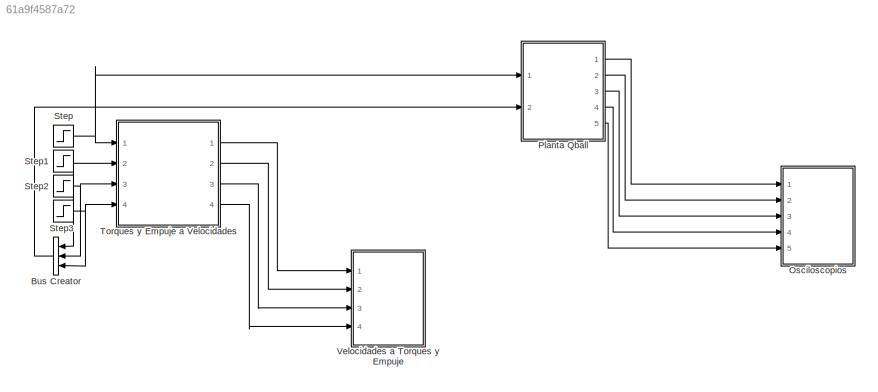
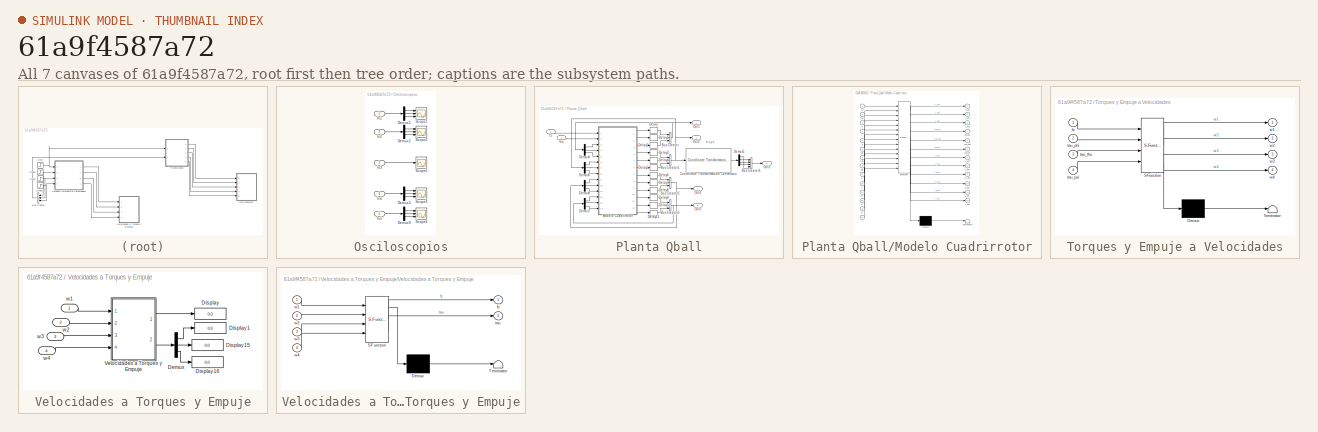
[diagram: thumbnail index - all 7 canvases of the model, root first then tree order]
MODEL slx_61a9f4587a72
KIND model
CONFIG AbsTol = auto
CONFIG EnableMultiTasking = off
CONFIG FixedStep = T
CONFIG MaxStep = auto
CONFIG MinStep = auto
CONFIG RelTol = 1e-3
CONFIG SampleTimeConstraint = Unconstrained
CONFIG SolverName = FixedStepAuto
CONFIG StartTime = 0.0
CONFIG StopTime = 20
BLOCK [BusCreator] Bus Creator
  DisplayOption = bar
  InheritFromInputs = on
  Inputs = 3
  Ports = [3, 1]
BLOCK [SubSystem] Osciloscopios
  Ports = [5]
  RequestExecContextInheritance = off
BLOCK [Demux] Osciloscopios/Demux1
  Outputs = 3
  Ports = [1, 3]
BLOCK [Demux] Osciloscopios/Demux2
  Outputs = 3
  Ports = [1, 3]
BLOCK [Demux] Osciloscopios/Demux3
  Outputs = 3
  Ports = [1, 3]
BLOCK [Demux] Osciloscopios/Demux9
  Outputs = 3
  Ports = [1, 3]
BLOCK [Inport] Osciloscopios/In1
BLOCK [Inport] Osciloscopios/In2
  Port = 2
BLOCK [Inport] Osciloscopios/In3
  Port = 3
BLOCK [Inport] Osciloscopios/In4
  Port = 4
BLOCK [Inport] Osciloscopios/In5
  Port = 5
BLOCK [Scope] Osciloscopios/Scope1
  Floating = off
  NumInputPorts = 3
  Ports = [3]
  ScopeSpecificationString = Simulink.scopes.TimeScopeBlockCfg('CurrentConfiguration', extmgr.ConfigurationSet(extmgr.Configuration('Core','General UI',true),extmgr.Configuration('Core','Source UI',true),extmgr.Configuration('Sources','WiredSimulink',true,'DataLoggingVariableName','ScopeData1'),extmgr.Configuration('Visuals','Time Domain',true,'SerializedDisplays',{struct('MinYLimReal','-0.00166','MaxYLimReal','0.00018','YLab...<+2093ch>
BLOCK [Scope] Osciloscopios/Scope2
  Floating = off
  NumInputPorts = 3
  Ports = [3]
  ScopeSpecificationString = Simulink.scopes.TimeScopeBlockCfg('CurrentConfiguration', extmgr.ConfigurationSet(extmgr.Configuration('Core','General UI',true),extmgr.Configuration('Core','Source UI',true),extmgr.Configuration('Sources','WiredSimulink',true,'DataLoggingVariableName','ScopeData2'),extmgr.Configuration('Visuals','Time Domain',true,'SerializedDisplays',{struct('MinYLimReal','-1.00000','MaxYLimReal','1.00000','YLab...<+2100ch>
BLOCK [Scope] Osciloscopios/Scope3
  Floating = off
  NumInputPorts = 3
  Ports = [3]
  ScopeSpecificationString = Simulink.scopes.TimeScopeBlockCfg('CurrentConfiguration', extmgr.ConfigurationSet(extmgr.Configuration('Core','General UI',true),extmgr.Configuration('Core','Source UI',true),extmgr.Configuration('Sources','WiredSimulink',true,'DataLoggingVariableName','ScopeData3'),extmgr.Configuration('Visuals','Time Domain',true,'SerializedDisplays',{struct('MinYLimReal','-0.83487','MaxYLimReal','7.51387','YLab...<+2088ch>
BLOCK [Scope] Osciloscopios/Scope4
  Floating = off
  NumInputPorts = 3
  Ports = [3]
  ScopeSpecificationString = Simulink.scopes.TimeScopeBlockCfg('CurrentConfiguration', extmgr.ConfigurationSet(extmgr.Configuration('Core','General UI',true),extmgr.Configuration('Core','Source UI',true),extmgr.Configuration('Sources','WiredSimulink',true,'DataLoggingVariableName','ScopeData4'),extmgr.Configuration('Visuals','Time Domain',true,'SerializedDisplays',{struct('MinYLimReal','-0.20417','MaxYLimReal','1.8375','YLabe...<+2084ch>
BLOCK [Scope] Osciloscopios/Scope5
  Floating = off
  NumInputPorts = 1
  Ports = [1]
  ScopeSpecificationString = Simulink.scopes.TimeScopeBlockCfg('CurrentConfiguration', extmgr.ConfigurationSet(extmgr.Configuration('Core','General UI',true),extmgr.Configuration('Core','Source UI',true),extmgr.Configuration('Sources','WiredSimulink',true),extmgr.Configuration('Visuals','Time Domain',true,'SerializedDisplays',{struct('MinYLimReal','-0.125','MaxYLimReal','1.125','YLabelReal','','MinYLimMag','0.00000','MaxYLimM...<+2045ch>
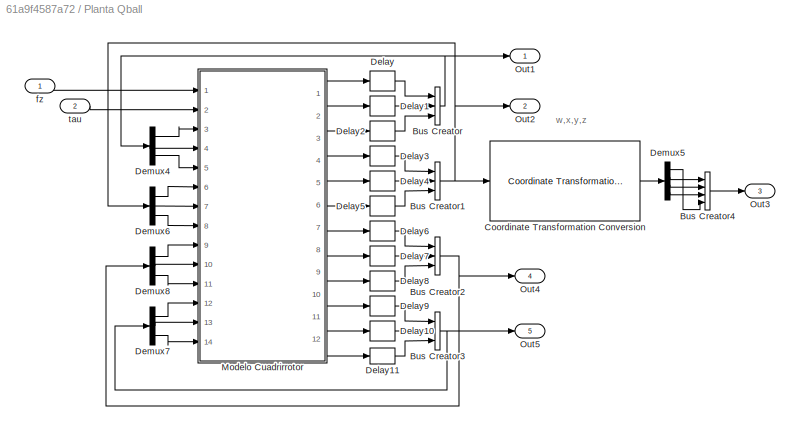
BLOCK [SubSystem] Planta Qball
  Ports = [2, 5]
  RequestExecContextInheritance = off
BLOCK [BusCreator] Planta Qball/Bus Creator
  DisplayOption = bar
  InheritFromInputs = on
  Inputs = 3
  Ports = [3, 1]
BLOCK [BusCreator] Planta Qball/Bus Creator1
  DisplayOption = bar
  InheritFromInputs = on
  Inputs = 3
  Ports = [3, 1]
BLOCK [BusCreator] Planta Qball/Bus Creator2
  DisplayOption = bar
  InheritFromInputs = on
  Inputs = 3
  Ports = [3, 1]
BLOCK [BusCreator] Planta Qball/Bus Creator3
  DisplayOption = bar
  InheritFromInputs = on
  Inputs = 3
  Ports = [3, 1]
BLOCK [BusCreator] Planta Qball/Bus Creator4
  DisplayOption = bar
  InheritFromInputs = on
  Inputs = 4
  Ports = [4, 1]
BLOCK [Reference] Planta Qball/Coordinate Transformation Conversion  REF=robotcorelib/Coordinate Transformation Conversion
  Ports = [1, 1]
  SourceBlock = robotcorelib/Coordinate Transformation Conversion
  SourceProductBaseCode = NV,RO,RR,UV
  SourceType = robotics.slcore.internal.block.CoordinateTransformationConversion
BLOCK [Delay] Planta Qball/Delay
  DelayLength = 1
  InputPortMap = u0
  Ports = [1, 1]
  SampleTime = T
BLOCK [Delay] Planta Qball/Delay1
  DelayLength = 1
  InputPortMap = u0
  Ports = [1, 1]
  SampleTime = T
BLOCK [Delay] Planta Qball/Delay10
  DelayLength = 1
  InputPortMap = u0
  Ports = [1, 1]
  SampleTime = T
BLOCK [Delay] Planta Qball/Delay11
  DelayLength = 1
  InputPortMap = u0
  Ports = [1, 1]
  SampleTime = T
BLOCK [Delay] Planta Qball/Delay2
  DelayLength = 1
  InputPortMap = u0
  Ports = [1, 1]
  SampleTime = T
BLOCK [Delay] Planta Qball/Delay3
  DelayLength = 1
  InputPortMap = u0
  Ports = [1, 1]
  SampleTime = T
BLOCK [Delay] Planta Qball/Delay4
  DelayLength = 1
  InputPortMap = u0
  Ports = [1, 1]
  SampleTime = T
BLOCK [Delay] Planta Qball/Delay5
  DelayLength = 1
  InputPortMap = u0
  Ports = [1, 1]
  SampleTime = T
BLOCK [Delay] Planta Qball/Delay6
  DelayLength = 1
  InputPortMap = u0
  Ports = [1, 1]
  SampleTime = T
BLOCK [Delay] Planta Qball/Delay7
  DelayLength = 1
  InputPortMap = u0
  Ports = [1, 1]
  SampleTime = T
BLOCK [Delay] Planta Qball/Delay8
  DelayLength = 1
  InputPortMap = u0
  Ports = [1, 1]
  SampleTime = T
BLOCK [Delay] Planta Qball/Delay9
  DelayLength = 1
  InputPortMap = u0
  Ports = [1, 1]
  SampleTime = T
BLOCK [Demux] Planta Qball/Demux4
  Outputs = 3
  Ports = [1, 3]
BLOCK [Demux] Planta Qball/Demux5
  Ports = [1, 4]
BLOCK [Demux] Planta Qball/Demux6
  Outputs = 3
  Ports = [1, 3]
BLOCK [Demux] Planta Qball/Demux7
  Outputs = 3
  Ports = [1, 3]
BLOCK [Demux] Planta Qball/Demux8
  Outputs = 3
  Ports = [1, 3]
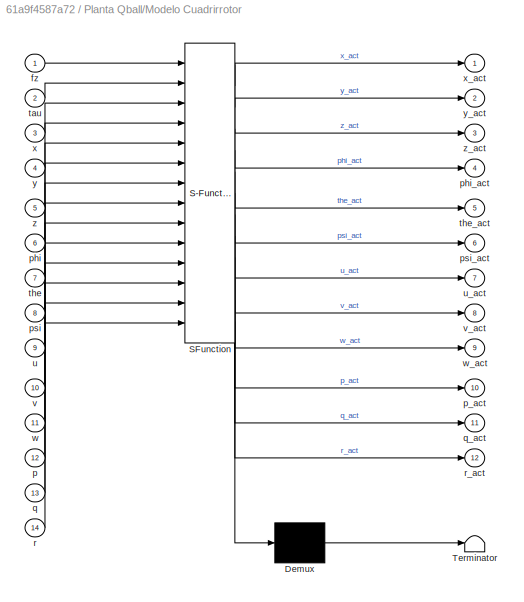
BLOCK [SubSystem] Planta Qball/Modelo Cuadrirrotor
  ErrorFcn = Stateflow.Translate.translate
  PermitHierarchicalResolution = ExplicitOnly
  Ports = [14, 12]
  RequestExecContextInheritance = off
  SFBlockType = MATLAB Function
  TreatAsAtomicUnit = on
BLOCK [Demux] Planta Qball/Modelo Cuadrirrotor/ Demux 
  Outputs = 1
  Ports = [1, 1]
BLOCK [S-Function] Planta Qball/Modelo Cuadrirrotor/ SFunction 
  EnableBusSupport = on
  FunctionName = sf_sfun
  PortCounts = [14 13]
  Ports = [14, 13]
  SFcnIsStateOwnerBlock = off
  SFunctionDeploymentMode = off
  Tag = Stateflow S-Function 3
BLOCK [Terminator] Planta Qball/Modelo Cuadrirrotor/ Terminator 
BLOCK [Inport] Planta Qball/Modelo Cuadrirrotor/fz
BLOCK [Inport] Planta Qball/Modelo Cuadrirrotor/p
  Port = 12
BLOCK [Outport] Planta Qball/Modelo Cuadrirrotor/p_act
  Port = 10
BLOCK [Inport] Planta Qball/Modelo Cuadrirrotor/phi
  Port = 6
BLOCK [Outport] Planta Qball/Modelo Cuadrirrotor/phi_act
  Port = 4
BLOCK [Inport] Planta Qball/Modelo Cuadrirrotor/psi
  Port = 8
BLOCK [Outport] Planta Qball/Modelo Cuadrirrotor/psi_act
  Port = 6
BLOCK [Inport] Planta Qball/Modelo Cuadrirrotor/q
  Port = 13
BLOCK [Outport] Planta Qball/Modelo Cuadrirrotor/q_act
  Port = 11
BLOCK [Inport] Planta Qball/Modelo Cuadrirrotor/r
  Port = 14
BLOCK [Outport] Planta Qball/Modelo Cuadrirrotor/r_act
  Port = 12
BLOCK [Inport] Planta Qball/Modelo Cuadrirrotor/tau
  Port = 2
BLOCK [Inport] Planta Qball/Modelo Cuadrirrotor/the
  Port = 7
BLOCK [Outport] Planta Qball/Modelo Cuadrirrotor/the_act
  Port = 5
BLOCK [Inport] Planta Qball/Modelo Cuadrirrotor/u
  Port = 9
BLOCK [Outport] Planta Qball/Modelo Cuadrirrotor/u_act
  Port = 7
BLOCK [Inport] Planta Qball/Modelo Cuadrirrotor/v
  Port = 10
BLOCK [Outport] Planta Qball/Modelo Cuadrirrotor/v_act
  Port = 8
BLOCK [Inport] Planta Qball/Modelo Cuadrirrotor/w
  Port = 11
BLOCK [Outport] Planta Qball/Modelo Cuadrirrotor/w_act
  Port = 9
BLOCK [Inport] Planta Qball/Modelo Cuadrirrotor/x
  Port = 3
BLOCK [Outport] Planta Qball/Modelo Cuadrirrotor/x_act
BLOCK [Inport] Planta Qball/Modelo Cuadrirrotor/y
  Port = 4
BLOCK [Outport] Planta Qball/Modelo Cuadrirrotor/y_act
  Port = 2
  VectorParamsAs1DForOutWhenUnconnected = off
BLOCK [Inport] Planta Qball/Modelo Cuadrirrotor/z
  Port = 5
BLOCK [Outport] Planta Qball/Modelo Cuadrirrotor/z_act
  Port = 3
BLOCK [Outport] Planta Qball/Out1
BLOCK [Outport] Planta Qball/Out2
  Port = 2
BLOCK [Outport] Planta Qball/Out3
  Port = 3
BLOCK [Outport] Planta Qball/Out4
  Port = 4
BLOCK [Outport] Planta Qball/Out5
  Port = 5
BLOCK [Inport] Planta Qball/fz
BLOCK [Inport] Planta Qball/tau
  Port = 2
BLOCK [Step] Step
  After = fze
  SampleTime = 0
  Time = 0
BLOCK [Step] Step1
  After = 0
  SampleTime = 0
BLOCK [Step] Step2
  After = 0
  SampleTime = 0
BLOCK [Step] Step3
  After = 0
  SampleTime = 0
BLOCK [SubSystem] Torques y Empuje a Velocidades
  ErrorFcn = Stateflow.Translate.translate
  PermitHierarchicalResolution = ExplicitOnly
  Ports = [4, 4]
  RequestExecContextInheritance = off
  SFBlockType = MATLAB Function
  TreatAsAtomicUnit = on
BLOCK [Demux] Torques y Empuje a Velocidades/ Demux 
  Outputs = 1
  Ports = [1, 1]
BLOCK [S-Function] Torques y Empuje a Velocidades/ SFunction 
  EnableBusSupport = on
  FunctionName = sf_sfun
  PortCounts = [4 5]
  Ports = [4, 5]
  SFcnIsStateOwnerBlock = off
  SFunctionDeploymentMode = off
  Tag = Stateflow S-Function 1
BLOCK [Terminator] Torques y Empuje a Velocidades/ Terminator 
BLOCK [Inport] Torques y Empuje a Velocidades/fz
BLOCK [Inport] Torques y Empuje a Velocidades/tau_phi
  Port = 2
BLOCK [Inport] Torques y Empuje a Velocidades/tau_psi
  Port = 4
BLOCK [Inport] Torques y Empuje a Velocidades/tau_the
  Port = 3
BLOCK [Outport] Torques y Empuje a Velocidades/w1
BLOCK [Outport] Torques y Empuje a Velocidades/w2
  Port = 2
BLOCK [Outport] Torques y Empuje a Velocidades/w3
  Port = 3
BLOCK [Outport] Torques y Empuje a Velocidades/w4
  Port = 4
BLOCK [SubSystem] Velocidades a Torques y Empuje
  Ports = [4]
  RequestExecContextInheritance = off
BLOCK [Demux] Velocidades a Torques y Empuje/Demux
  Outputs = 3
  Ports = [1, 3]
BLOCK [Display] Velocidades a Torques y Empuje/Display
  Decimation = 1
  Ports = [1]
BLOCK [Display] Velocidades a Torques y Empuje/Display1
  Decimation = 1
  Ports = [1]
BLOCK [Display] Velocidades a Torques y Empuje/Display15
  Decimation = 1
  Ports = [1]
BLOCK [Display] Velocidades a Torques y Empuje/Display16
  Decimation = 1
  Ports = [1]
BLOCK [SubSystem] Velocidades a Torques y Empuje/Velocidades a Torques y Empuje
  ErrorFcn = Stateflow.Translate.translate
  PermitHierarchicalResolution = ExplicitOnly
  Ports = [4, 2]
  RequestExecContextInheritance = off
  SFBlockType = MATLAB Function
  TreatAsAtomicUnit = on
BLOCK [Demux] Velocidades a Torques y Empuje/Velocidades a Torques y Empuje/ Demux 
  Outputs = 1
  Ports = [1, 1]
BLOCK [S-Function] Velocidades a Torques y Empuje/Velocidades a Torques y Empuje/ SFunction 
  EnableBusSupport = on
  FunctionName = sf_sfun
  PortCounts = [4 3]
  Ports = [4, 3]
  SFcnIsStateOwnerBlock = off
  SFunctionDeploymentMode = off
  Tag = Stateflow S-Function 2
BLOCK [Terminator] Velocidades a Torques y Empuje/Velocidades a Torques y Empuje/ Terminator 
BLOCK [Outport] Velocidades a Torques y Empuje/Velocidades a Torques y Empuje/fz
BLOCK [Outport] Velocidades a Torques y Empuje/Velocidades a Torques y Empuje/tau
  Port = 2
BLOCK [Inport] Velocidades a Torques y Empuje/Velocidades a Torques y Empuje/w1
BLOCK [Inport] Velocidades a Torques y Empuje/Velocidades a Torques y Empuje/w2
  Port = 2
BLOCK [Inport] Velocidades a Torques y Empuje/Velocidades a Torques y Empuje/w3
  Port = 3
BLOCK [Inport] Velocidades a Torques y Empuje/Velocidades a Torques y Empuje/w4
  Port = 4
BLOCK [Inport] Velocidades a Torques y Empuje/w1
BLOCK [Inport] Velocidades a Torques y Empuje/w2
  Port = 2
BLOCK [Inport] Velocidades a Torques y Empuje/w3
  Port = 3
BLOCK [Inport] Velocidades a Torques y Empuje/w4
  Port = 4
ANNOTATION Planta Qball: w,x,y,z
LINE Bus Creator:1 -> Planta Qball:2
LINE Osciloscopios/Demux1:1 -> Osciloscopios/Scope1:1
LINE Osciloscopios/Demux1:2 -> Osciloscopios/Scope1:2
LINE Osciloscopios/Demux1:3 -> Osciloscopios/Scope1:3
LINE Osciloscopios/Demux2:1 -> Osciloscopios/Scope2:1
LINE Osciloscopios/Demux2:2 -> Osciloscopios/Scope2:2
LINE Osciloscopios/Demux2:3 -> Osciloscopios/Scope2:3
LINE Osciloscopios/Demux3:1 -> Osciloscopios/Scope3:1
LINE Osciloscopios/Demux3:2 -> Osciloscopios/Scope3:2
LINE Osciloscopios/Demux3:3 -> Osciloscopios/Scope3:3
LINE Osciloscopios/Demux9:1 -> Osciloscopios/Scope4:1
LINE Osciloscopios/Demux9:2 -> Osciloscopios/Scope4:2
LINE Osciloscopios/Demux9:3 -> Osciloscopios/Scope4:3
LINE Osciloscopios/In1:1 -> Osciloscopios/Demux1:1
LINE Osciloscopios/In2:1 -> Osciloscopios/Demux2:1
LINE Osciloscopios/In3:1 -> Osciloscopios/Scope5:1
LINE Osciloscopios/In4:1 -> Osciloscopios/Demux3:1
LINE Osciloscopios/In5:1 -> Osciloscopios/Demux9:1
NET Planta Qball/Bus Creator1:1 -> Planta Qball/Coordinate Transformation Conversion:1, Planta Qball/Demux6:1, Planta Qball/Out2:1
NET Planta Qball/Bus Creator2:1 -> Planta Qball/Demux8:1, Planta Qball/Out4:1
NET Planta Qball/Bus Creator3:1 -> Planta Qball/Demux7:1, Planta Qball/Out5:1
LINE Planta Qball/Bus Creator4:1 -> Planta Qball/Out3:1
NET Planta Qball/Bus Creator:1 -> Planta Qball/Demux4:1, Planta Qball/Out1:1
LINE Planta Qball/Coordinate Transformation Conversion:1 -> Planta Qball/Demux5:1
LINE Planta Qball/Delay10:1 -> Planta Qball/Bus Creator3:2
LINE Planta Qball/Delay11:1 -> Planta Qball/Bus Creator3:3
LINE Planta Qball/Delay1:1 -> Planta Qball/Bus Creator:2
LINE Planta Qball/Delay2:1 -> Planta Qball/Bus Creator:3
LINE Planta Qball/Delay3:1 -> Planta Qball/Bus Creator1:1
LINE Planta Qball/Delay4:1 -> Planta Qball/Bus Creator1:2
LINE Planta Qball/Delay5:1 -> Planta Qball/Bus Creator1:3
LINE Planta Qball/Delay6:1 -> Planta Qball/Bus Creator2:1
LINE Planta Qball/Delay7:1 -> Planta Qball/Bus Creator2:2
LINE Planta Qball/Delay8:1 -> Planta Qball/Bus Creator2:3
LINE Planta Qball/Delay9:1 -> Planta Qball/Bus Creator3:1
LINE Planta Qball/Delay:1 -> Planta Qball/Bus Creator:1
LINE Planta Qball/Demux4:1 -> Planta Qball/Modelo Cuadrirrotor:3
LINE Planta Qball/Demux4:2 -> Planta Qball/Modelo Cuadrirrotor:4
LINE Planta Qball/Demux4:3 -> Planta Qball/Modelo Cuadrirrotor:5
LINE Planta Qball/Demux5:1 -> Planta Qball/Bus Creator4:4
LINE Planta Qball/Demux5:2 -> Planta Qball/Bus Creator4:1
LINE Planta Qball/Demux5:3 -> Planta Qball/Bus Creator4:2
LINE Planta Qball/Demux5:4 -> Planta Qball/Bus Creator4:3
LINE Planta Qball/Demux6:1 -> Planta Qball/Modelo Cuadrirrotor:6
LINE Planta Qball/Demux6:2 -> Planta Qball/Modelo Cuadrirrotor:7
LINE Planta Qball/Demux6:3 -> Planta Qball/Modelo Cuadrirrotor:8
LINE Planta Qball/Demux7:1 -> Planta Qball/Modelo Cuadrirrotor:12
LINE Planta Qball/Demux7:2 -> Planta Qball/Modelo Cuadrirrotor:13
LINE Planta Qball/Demux7:3 -> Planta Qball/Modelo Cuadrirrotor:14
LINE Planta Qball/Demux8:1 -> Planta Qball/Modelo Cuadrirrotor:9
LINE Planta Qball/Demux8:2 -> Planta Qball/Modelo Cuadrirrotor:10
LINE Planta Qball/Demux8:3 -> Planta Qball/Modelo Cuadrirrotor:11
LINE Planta Qball/Modelo Cuadrirrotor:1 -> Planta Qball/Delay:1
LINE Planta Qball/Modelo Cuadrirrotor:10 -> Planta Qball/Delay9:1
LINE Planta Qball/Modelo Cuadrirrotor:11 -> Planta Qball/Delay10:1
LINE Planta Qball/Modelo Cuadrirrotor:12 -> Planta Qball/Delay11:1
LINE Planta Qball/Modelo Cuadrirrotor:2 -> Planta Qball/Delay1:1
LINE Planta Qball/Modelo Cuadrirrotor:3 -> Planta Qball/Delay2:1
LINE Planta Qball/Modelo Cuadrirrotor:4 -> Planta Qball/Delay3:1
LINE Planta Qball/Modelo Cuadrirrotor:5 -> Planta Qball/Delay4:1
LINE Planta Qball/Modelo Cuadrirrotor:6 -> Planta Qball/Delay5:1
LINE Planta Qball/Modelo Cuadrirrotor:7 -> Planta Qball/Delay6:1
LINE Planta Qball/Modelo Cuadrirrotor:8 -> Planta Qball/Delay7:1
LINE Planta Qball/Modelo Cuadrirrotor:9 -> Planta Qball/Delay8:1
LINE Planta Qball/fz:1 -> Planta Qball/Modelo Cuadrirrotor:1
LINE Planta Qball/tau:1 -> Planta Qball/Modelo Cuadrirrotor:2
LINE Planta Qball:1 -> Osciloscopios:1
LINE Planta Qball:2 -> Osciloscopios:2
LINE Planta Qball:3 -> Osciloscopios:3
LINE Planta Qball:4 -> Osciloscopios:4
LINE Planta Qball:5 -> Osciloscopios:5
NET Step1:1 -> Bus Creator:1, Torques y Empuje a Velocidades:2
NET Step2:1 -> Bus Creator:2, Torques y Empuje a Velocidades:3
NET Step3:1 -> Bus Creator:3, Torques y Empuje a Velocidades:4
NET Step:1 -> Planta Qball:1, Torques y Empuje a Velocidades:1
LINE Torques y Empuje a Velocidades:1 -> Velocidades a Torques y Empuje:1
LINE Torques y Empuje a Velocidades:2 -> Velocidades a Torques y Empuje:2
LINE Torques y Empuje a Velocidades:3 -> Velocidades a Torques y Empuje:3
LINE Torques y Empuje a Velocidades:4 -> Velocidades a Torques y Empuje:4
LINE Velocidades a Torques y Empuje/Demux:1 -> Velocidades a Torques y Empuje/Display1:1
LINE Velocidades a Torques y Empuje/Demux:2 -> Velocidades a Torques y Empuje/Display15:1
LINE Velocidades a Torques y Empuje/Demux:3 -> Velocidades a Torques y Empuje/Display16:1
LINE Velocidades a Torques y Empuje/Velocidades a Torques y Empuje:1 -> Velocidades a Torques y Empuje/Display:1
LINE Velocidades a Torques y Empuje/Velocidades a Torques y Empuje:2 -> Velocidades a Torques y Empuje/Demux:1
LINE Velocidades a Torques y Empuje/w1:1 -> Velocidades a Torques y Empuje/Velocidades a Torques y Empuje:1
LINE Velocidades a Torques y Empuje/w2:1 -> Velocidades a Torques y Empuje/Velocidades a Torques y Empuje:2
LINE Velocidades a Torques y Empuje/w3:1 -> Velocidades a Torques y Empuje/Velocidades a Torques y Empuje:3
LINE Velocidades a Torques y Empuje/w4:1 -> Velocidades a Torques y Empuje/Velocidades a Torques y Empuje:4
note: NET lines group one-source signal fan-out (src -> all destinations, sorted); 1:1 wires keep LINE
CHART Torques y Empuje a Velocidades states=1 transitions=1
  STATE_LABEL 'eML_blk_kernel()'
  STATE_LABEL 'SCRIPT:\nfunction [w1,w2,w3,w4] = H(fz,tau_phi,tau_the,tau_psi)\n%         Salidas          Entradas\n\n% Constantes \nl = 0.2;    % m\nkf = 0.007; % Nm/A\nkm = 0.8;   % V/kRPM\n\n% Matriz H\nH = [kf     kf      kf      kf;\n     0      l*kf    0       -l*kf;\n     -l*kf  0       l*kf    0;  \n     km     -km     km      -km];\n \n% Inversa de H\nH_inversa = inv(H);\n\n% Vector de entrada\nTorques = [fz;\n           ...<+249ch>'
CHART Velocidades a Torques y Empuje/Velocidades a Torques y Empuje states=1 transitions=1
  STATE_LABEL 'eML_blk_kernel()'
  STATE_LABEL 'SCRIPT:\n\nfunction [fz,tau] = H(w1,w2,w3,w4)\n%         Salidas     Entradas\n\n% wi rad/s\n\n% Constantes\nl = 0.2;    % m\nkf = 0.007; % Nm/A\nkm = 0.8;   % V/kRPM\n\n% Matriz H\nH = [kf     kf      kf      kf;\n     0      l*kf    0       -l*kf;\n     -l*kf  0       l*kf    0;\n     km     -km     km      -km];\n\nWi2 = [w1^2;\n       w2^2;\n       w3^2;\n       w4^2];\n \nTorques = H*Wi2;\n\nfz = Torques(1);\ntau_phi ...<+90ch>'
CHART Planta Qball/Modelo Cuadrirrotor states=1 transitions=1
  STATE_LABEL 'eML_blk_kernel()'
  STATE_LABEL 'SCRIPT:\nfunction [x_act,y_act,z_act,phi_act,the_act,psi_act,u_act,v_act,w_act,p_act,q_act,r_act] ...\n    = Cuadrirrotor(fz,tau,x,y,z,phi,the,psi,u,v,w,p,q,r)\n%                  Salidas            Entradas \n                                  \n%Constantes\nm = 1.79;       g = 9.77412;\nIxx = 0.03;     Iyy = 0.03;\nIzz = 0.04;     T = 0.01;\n\n\n% Definición de los estados iniciales (dron en el piso y apaga...<+1271ch>'
CHART  states=0 transitions=0
CHART  states=0 transitions=0
CHART  states=0 transitions=0
